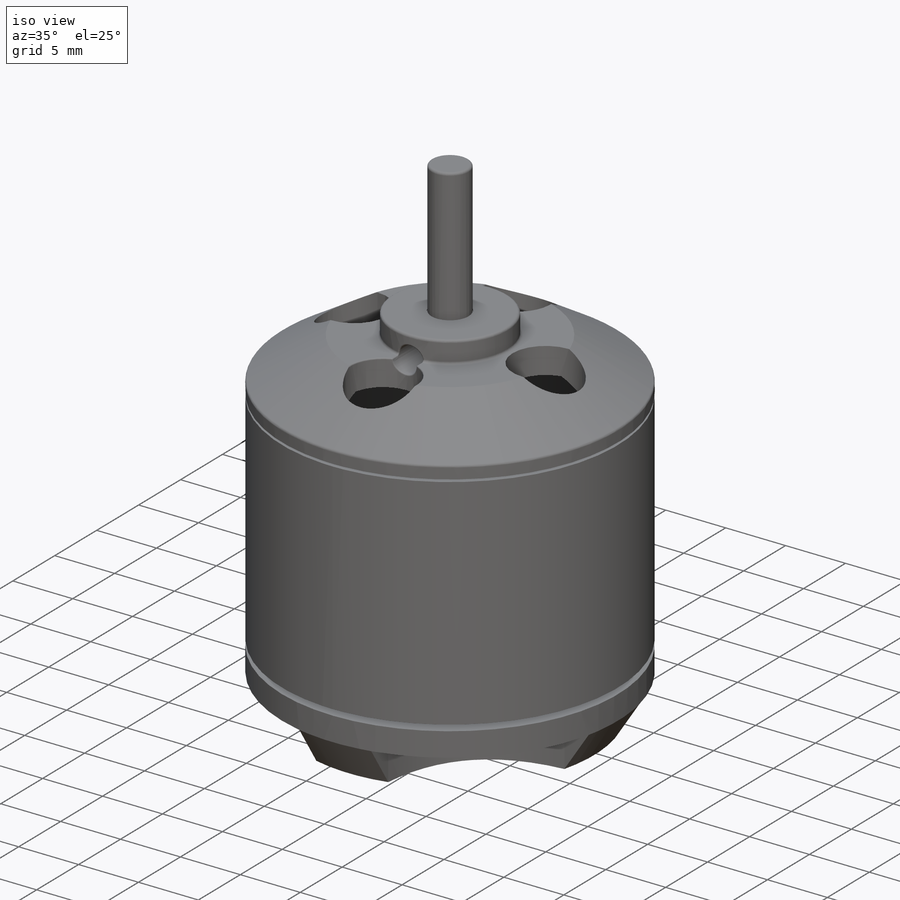
[diagram: iso view]
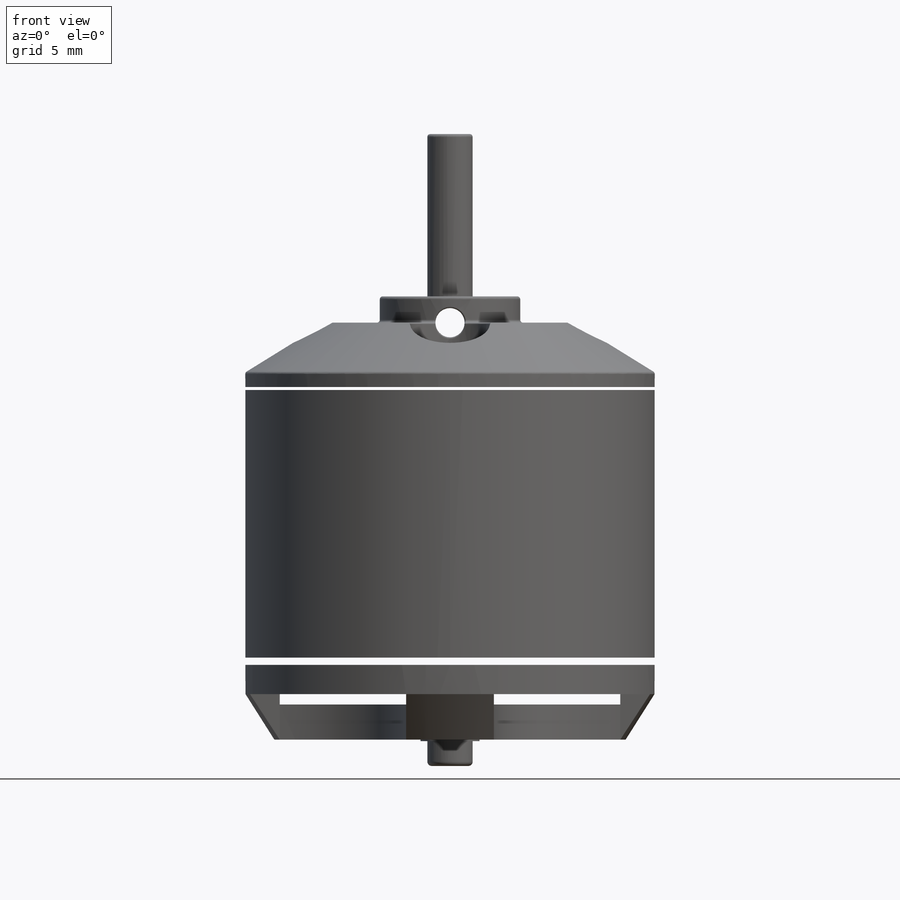
[diagram: front view]
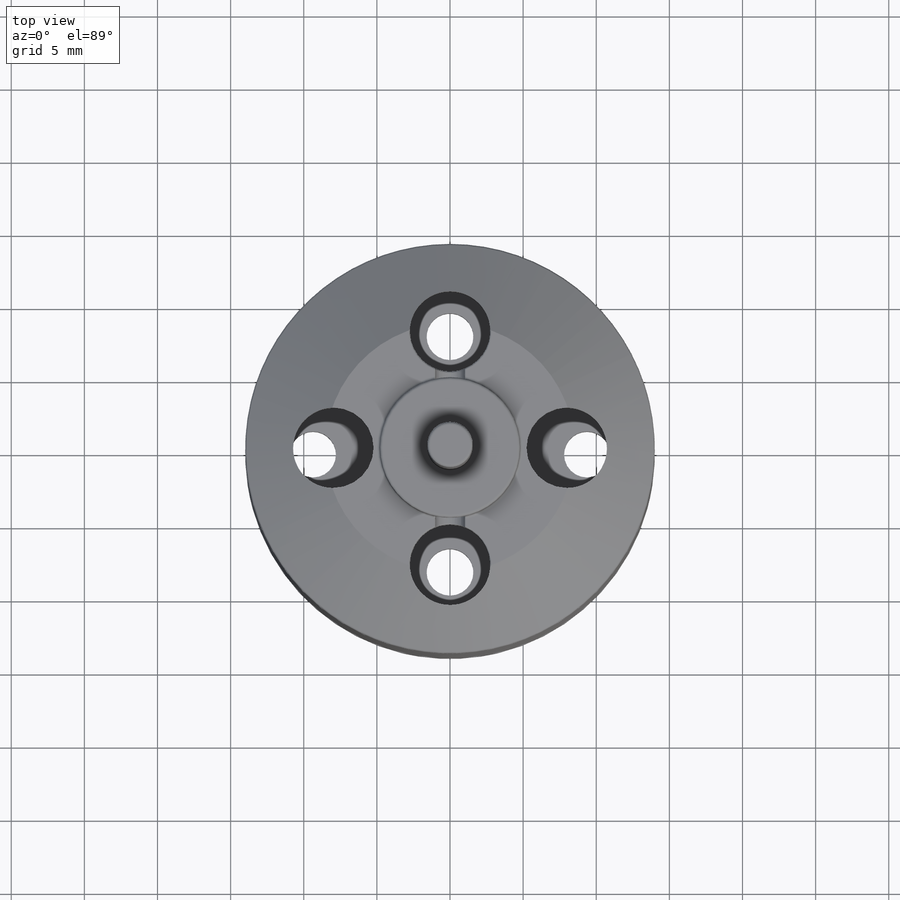
[diagram: top view]
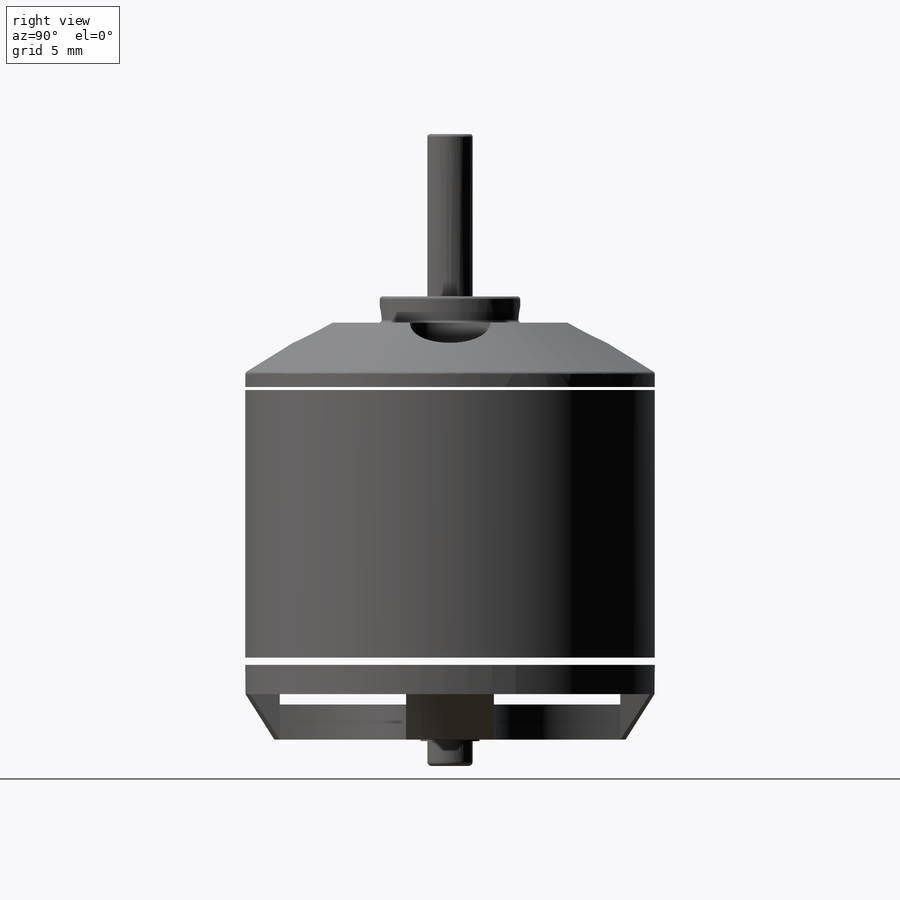
[diagram: right view]
SOLIDWORKS PART (.sldprt)
format: sldprt  version: not decoded by parser v0  size: 752,128 bytes
history: native  units: mm
features: sketch x24, chamfer x11, extrude x10, cut_extrude x8, plane x6, sweep x2, material x1, fillet x1, cut_revolve x1 (+10 scaffold rows collapsed)
feature tree (74):
  scaffold x10  (default folders/planes/origin — collapsed)
  material  "Material <sin especificar>"
  plane  "Alzado"
  plane  "Planta"
  plane  "Vista lateral"
  sketch  "Croquis2"  dims[D1=28.0mm]
  extrude  "Saliente-Extruir1"  Depth=18.3mm
  plane  "Plano1"  Offset=0.5mm
  sketch  "Croquis3"
  extrude  "Saliente-Extruir2"  Depth=2mm
  sketch  "Croquis4"
  sketch  "Croquis5"
  sweep  "Barrer1"
  sketch  "Croquis6"  dims[c1.D1=6.0mm c1.D2=~1.976874mm c2.D1=4.0]
  cut_extrude  "Cortar-Extruir1"  Depth=9mm
  sketch  "Croquis7"
  extrude  "Saliente-Extruir3"  Depth=2mm
  sketch  "Croquis8"
  cut_extrude  "Cortar-Extruir2"  Depth=25mm
  plane  "Plano2"  Offset=5.11209mm
  sketch  "Croquis9"
  extrude  "Saliente-Extruir4"  Depth=0.0001mm
  sketch  "Croquis10"  dims[D1=3.1mm]
  extrude  "Saliente-Extruir5"  Depth=1.8mm
  fillet  "Redondeo1"  Radius=0.3mm
  sketch  "Croquis11"
  extrude  "Saliente-Extruir6"  Depth=0.1mm
  sketch  "Croquis12"
  cut_extrude  "Cortar-Extruir3"  Depth=0.1mm
  chamfer  "Chaflán1"  Distance=0.7mm Angle=19deg
  sketch  "Croquis13"  dims[D3=3.15mm D1=7.8mm D2=7.8mm]
  cut_extrude  "Cortar-Extruir4"  [1 undecoded]
  chamfer  "Redondeo2"  Distance=0.1mm
  sketch  "Croquis14"  dims[c1.D3=3.2mm c1.D4=3.2mm c2.D3=3.2mm c2.D1=6.45mm c2.D2=12.9mm]
  sketch  "Croquis15"
  cut_extrude  "Cortar-Extruir5"  [1 undecoded]
  chamfer  "Redondeo3"  Distance=0.1mm
  plane  "Plano3"  Offset=0.2mm
  sketch  "Croquis17"
  extrude  "Saliente-Extruir8"  Depth=1mm
  sketch  "Croquis18"  dims[D1=17.0mm]
  extrude  "Saliente-Extruir9"  Depth=3.4mm
  sketch  "Croquis19"
  sketch  "Croquis20"
  sweep  "Barrer2"
  chamfer  "Redondeo4"  Distance=0.2mm
  sketch  "Croquis21"  dims[D1=9.6mm]
  extrude  "Saliente-Extruir10"  Depth=1.8mm
  chamfer  "Redondeo5"  Distance=0.2mm
  chamfer  "Redondeo6"  Distance=0.2mm
  sketch  "Croquis22"  dims[D1=5.5mm D2=4.0]
  cut_extrude  "Cortar-Extruir6"  Depth=11.8mm
  sketch  "Croquis23"
  cut_revolve  "Cortar-Revolución1"  Angle=360deg
  sketch  "Croquis24"  dims[D1=2.0mm]
  cut_extrude  "Cortar-Extruir7"  Depth=11.8mm
  chamfer  "Redondeo7"  Distance=0.1mm
  chamfer  "Redondeo8"  Distance=0.1mm
  chamfer  "Redondeo9"  Distance=0.1mm
  chamfer  "Redondeo10"  Distance=0.1mm
  sketch  "Croquis25"  dims[D1=3.1mm]
  extrude  "Saliente-Extruir11"  Depth=11.1mm
  sketch  "Croquis26"
  cut_extrude  "Cortar-Extruir8"  Depth=0.1mm
  chamfer  "Redondeo11"  Distance=0.2mm
decode coverage: 39 of 57 modeling features carry decoded parameters
note: ~ marks probable driven/reference dimensions
note: 2 parameter values undecoded
note: suppression state not decoded; provenance and decode notes live in map.json
